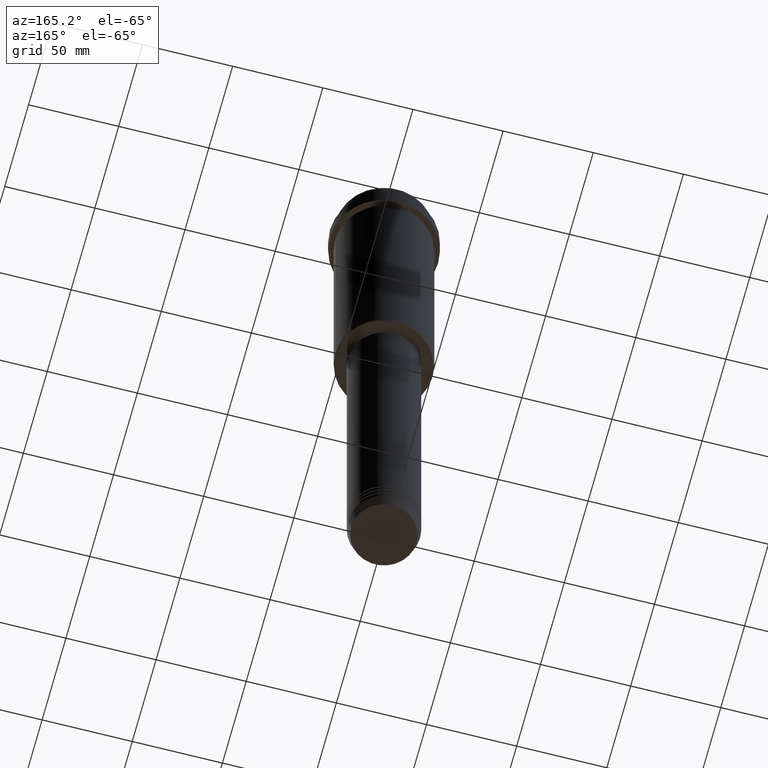
[diagram: clean part render]
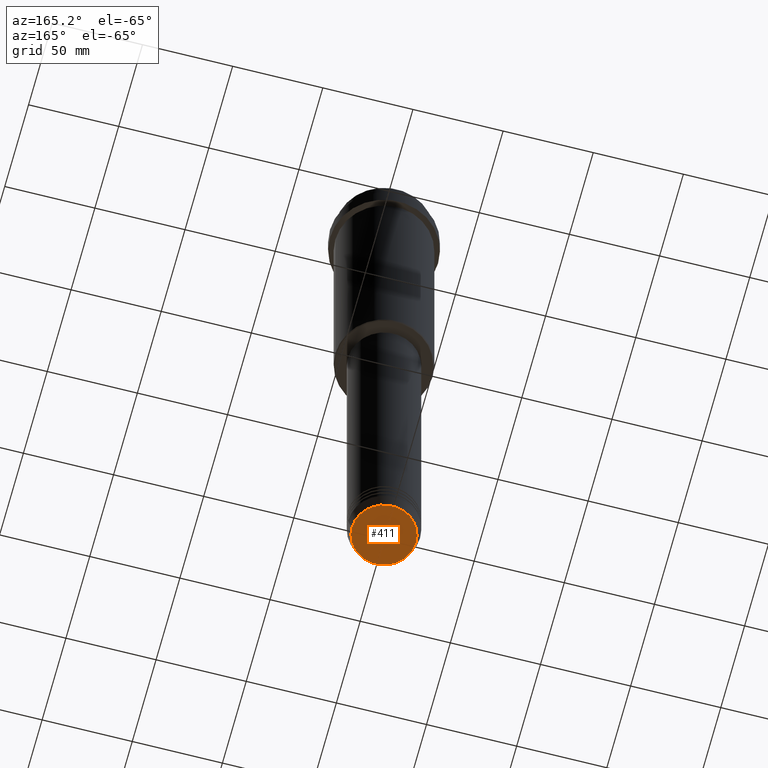
[diagram: same view with one face highlighted and labeled with its STEP entity id]
A machine part, auxiliary view. The second image highlights one B-rep face of the part: STEP entity #411.
In plain terms, the highlighted planar face has unit normal (0, -0, 1).
Its self-contained STEP definition (entity closure, byte-faithful):
#5 = PLANE ( 'NONE',  #271 ) ;
#86 = EDGE_LOOP ( 'NONE', ( #602, #177 ) ) ;
#88 = EDGE_CURVE ( 'NONE', #1257, #490, #389, .T. ) ;
#107 = AXIS2_PLACEMENT_3D ( 'NONE', #525, #953, #308 ) ;
#168 = DIRECTION ( 'NONE',  ( 0.000000000000000000, -0.000000000000000000, 1.000000000000000000 ) ) ;
#177 = ORIENTED_EDGE ( 'NONE', *, *, #88, .T. ) ;
#271 = AXIS2_PLACEMENT_3D ( 'NONE', #458, #168, #940 ) ;
#308 = DIRECTION ( 'NONE',  ( 1.000000000000000000, 0.000000000000000000, 0.000000000000000000 ) ) ;
#389 = CIRCLE ( 'NONE', #976, 17.74069215899265473 ) ;
#404 = EDGE_CURVE ( 'NONE', #490, #1257, #1329, .T. ) ;
#411 = ADVANCED_FACE ( 'NONE', ( #743 ), #5, .F. ) ;
#413 = CARTESIAN_POINT ( 'NONE',  ( 0.000000000000000000, 0.000000000000000000, -383.0000000000000000 ) ) ;
#458 = CARTESIAN_POINT ( 'NONE',  ( 0.000000000000000000, 0.000000000000000000, -383.0000000000000000 ) ) ;
#490 = VERTEX_POINT ( 'NONE', #1183 ) ;
#525 = CARTESIAN_POINT ( 'NONE',  ( 0.000000000000000000, 0.000000000000000000, -383.0000000000000000 ) ) ;
#602 = ORIENTED_EDGE ( 'NONE', *, *, #404, .T. ) ;
#743 = FACE_OUTER_BOUND ( 'NONE', #86, .T. ) ;
#833 = CARTESIAN_POINT ( 'NONE',  ( -17.74069215899265473, 2.202181136001357170E-15, -383.0000000000000000 ) ) ;
#940 = DIRECTION ( 'NONE',  ( 1.000000000000000000, 0.000000000000000000, 0.000000000000000000 ) ) ;
#953 = DIRECTION ( 'NONE',  ( 0.000000000000000000, 0.000000000000000000, -1.000000000000000000 ) ) ;
#976 = AXIS2_PLACEMENT_3D ( 'NONE', #413, #1409, #1232 ) ;
#1183 = CARTESIAN_POINT ( 'NONE',  ( 17.74069215899265473, 0.000000000000000000, -383.0000000000000000 ) ) ;
#1232 = DIRECTION ( 'NONE',  ( 1.000000000000000000, 0.000000000000000000, 0.000000000000000000 ) ) ;
#1257 = VERTEX_POINT ( 'NONE', #833 ) ;
#1329 = CIRCLE ( 'NONE', #107, 17.74069215899265473 ) ;
#1409 = DIRECTION ( 'NONE',  ( 0.000000000000000000, 0.000000000000000000, -1.000000000000000000 ) ) ;